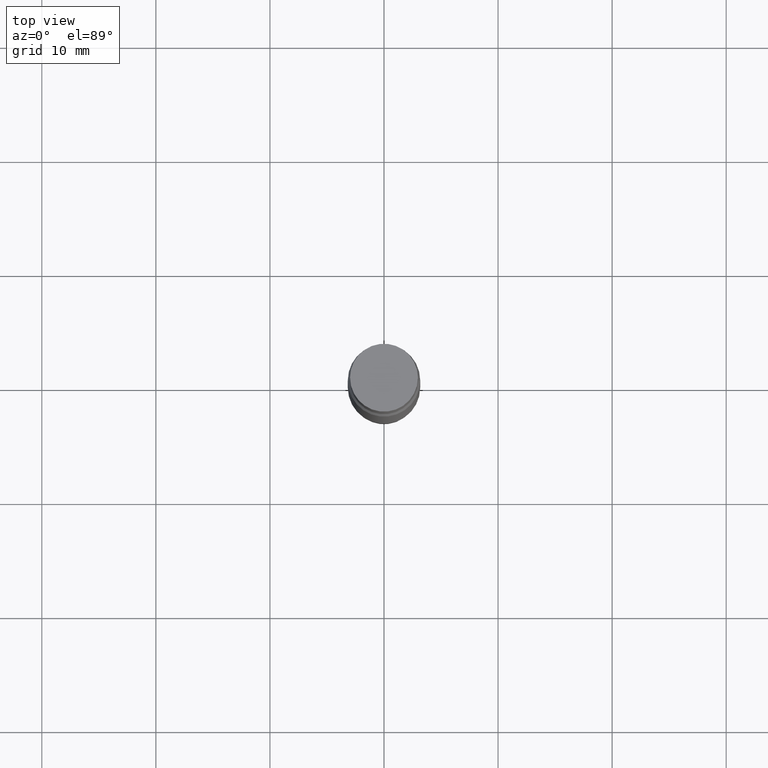
[diagram: clean part render]
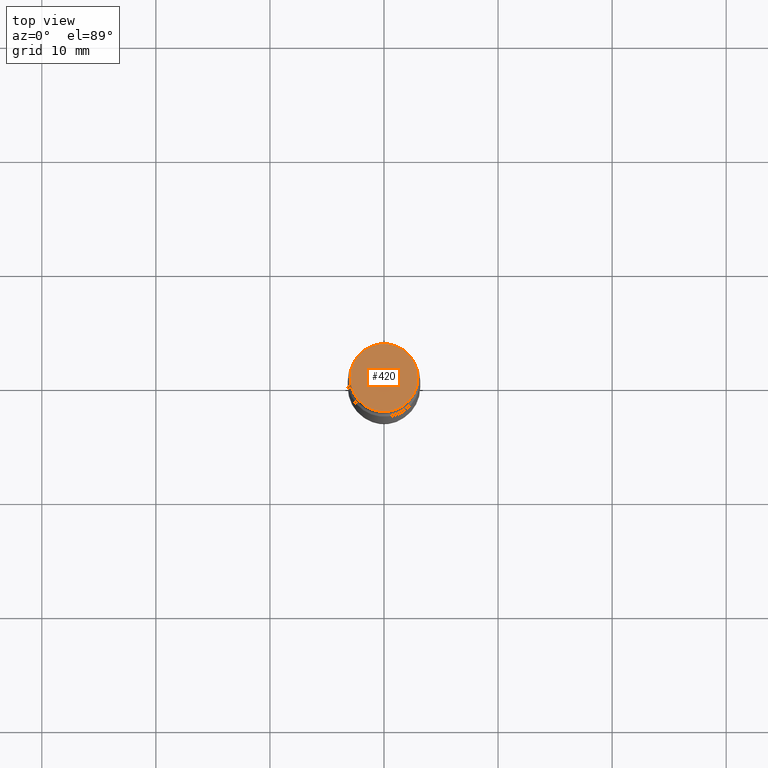
[diagram: same view with one face highlighted and labeled with its STEP entity id]
A machine part, top view. The second image highlights one B-rep face of the part: STEP entity #420.
In plain terms, the highlighted planar face has unit normal (-0, -0, -1).
Its self-contained STEP definition (entity closure, byte-faithful):
#40 = CIRCLE ( 'NONE', #335, 0.1171999999999999986 ) ;
#109 = DIRECTION ( 'NONE',  ( 2.445468806185136597E-29, 3.491805094961124077E-15, 1.000000000000000000 ) ) ;
#118 = CARTESIAN_POINT ( 'NONE',  ( 6.113672015462842613E-29, 4.046951474745467748E-19, 5.463695987328526437E-16 ) ) ;
#150 = PLANE ( 'NONE',  #493 ) ;
#312 = DIRECTION ( 'NONE',  ( 2.445468806185136597E-29, 3.491805094961124077E-15, 1.000000000000000000 ) ) ;
#335 = AXIS2_PLACEMENT_3D ( 'NONE', #751, #312, #378 ) ;
#378 = DIRECTION ( 'NONE',  ( 1.000000000000000000, -6.982962677686266711E-15, 0.000000000000000000 ) ) ;
#420 = ADVANCED_FACE ( 'NONE', ( #597 ), #150, .F. ) ;
#422 = EDGE_LOOP ( 'NONE', ( #862, #710 ) ) ;
#423 = DIRECTION ( 'NONE',  ( 1.000000000000000000, -6.982962677686266711E-15, 0.000000000000000000 ) ) ;
#426 = EDGE_CURVE ( 'NONE', #931, #943, #40, .T. ) ;
#455 = DIRECTION ( 'NONE',  ( -2.438088387897959208E-29, -3.491805094961123683E-15, -1.000000000000000000 ) ) ;
#458 = CARTESIAN_POINT ( 'NONE',  ( 6.156007611001344257E-29, 6.103167755106539107E-17, 5.463695987328526437E-16 ) ) ;
#462 = AXIS2_PLACEMENT_3D ( 'NONE', #118, #109, #423 ) ;
#464 = DIRECTION ( 'NONE',  ( 1.000000000000000000, -6.982962677686265922E-15, 2.260776888683160832E-33 ) ) ;
#477 = CIRCLE ( 'NONE', #462, 0.1171999999999999986 ) ;
#493 = AXIS2_PLACEMENT_3D ( 'NONE', #458, #455, #464 ) ;
#517 = CARTESIAN_POINT ( 'NONE',  ( 0.1171999999999999986, -8.179985306773559567E-16, 5.463695987328526437E-16 ) ) ;
#597 = FACE_OUTER_BOUND ( 'NONE', #422, .T. ) ;
#710 = ORIENTED_EDGE ( 'NONE', *, *, #426, .T. ) ;
#751 = CARTESIAN_POINT ( 'NONE',  ( 6.113672015462842613E-29, 4.046951474745467748E-19, 5.463695987328526437E-16 ) ) ;
#810 = CARTESIAN_POINT ( 'NONE',  ( -0.1171999999999999986, -6.849621325398194571E-17, 5.463695987328557991E-16 ) ) ;
#862 = ORIENTED_EDGE ( 'NONE', *, *, #864, .T. ) ;
#864 = EDGE_CURVE ( 'NONE', #943, #931, #477, .T. ) ;
#931 = VERTEX_POINT ( 'NONE', #810 ) ;
#943 = VERTEX_POINT ( 'NONE', #517 ) ;